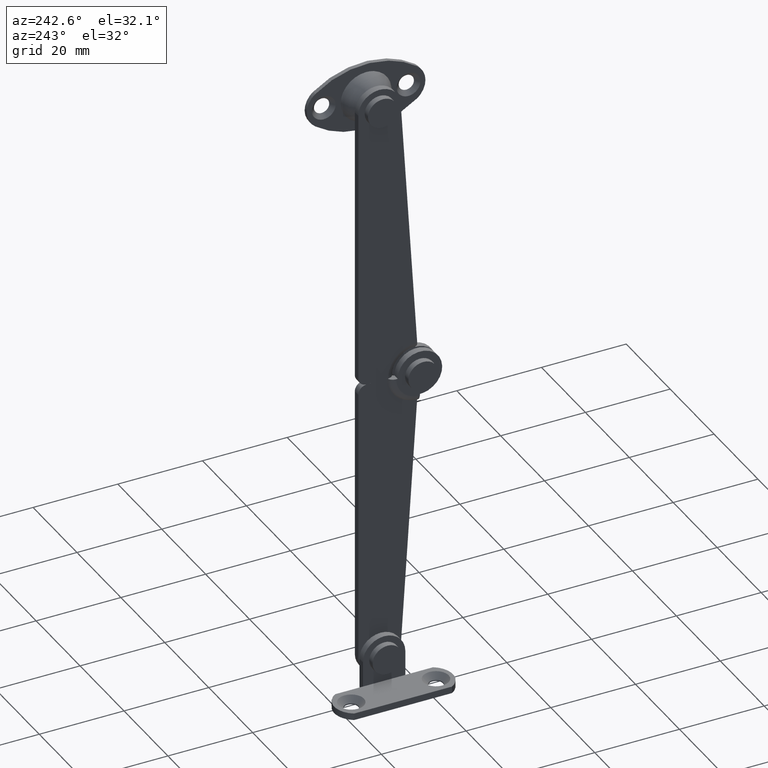
[diagram: clean part render]
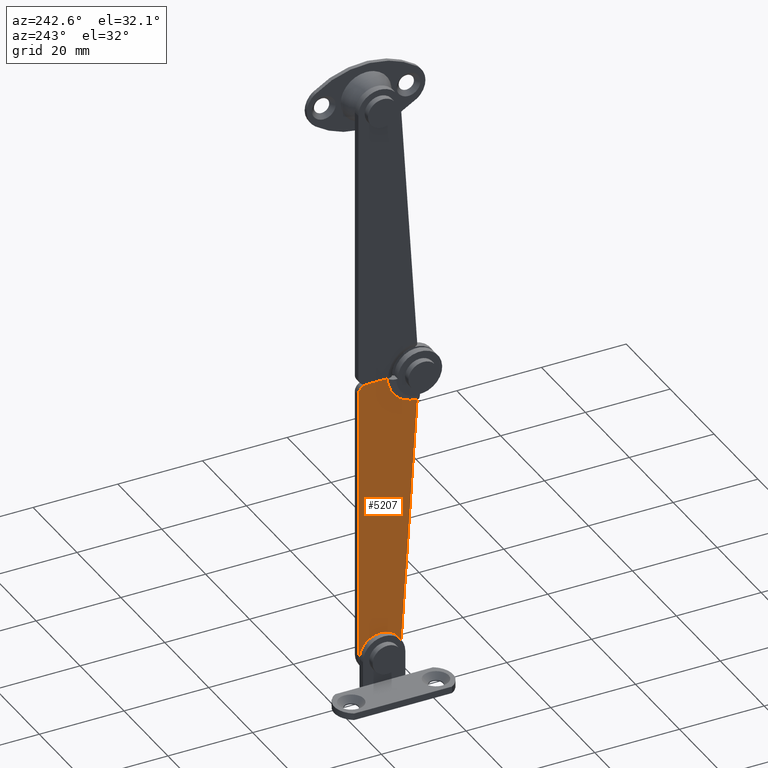
[diagram: same view with one face highlighted and labeled with its STEP entity id]
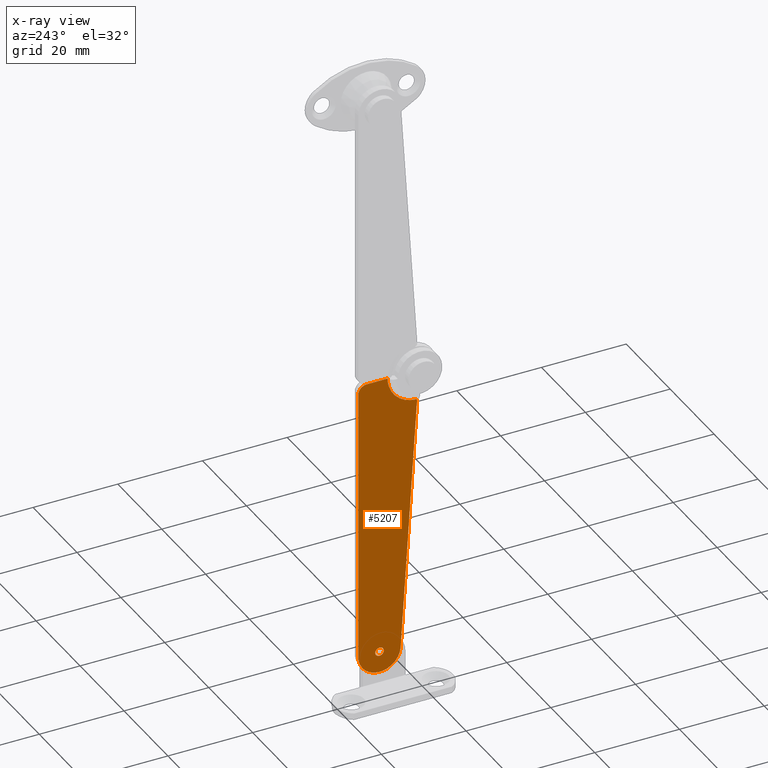
[diagram: x-ray of the same camera — body ghosted, the highlighted face saturated]
A machine part, auxiliary view. The second image highlights one B-rep face of the part: STEP entity #5207.
The next image is the same camera in x-ray: the body ghosted, the highlighted face saturated — about 0% of this face is hidden behind the body in this view.
In plain terms, the highlighted face is a freeform B-spline surface patch.
Its self-contained STEP definition (entity closure, byte-faithful):
#4295=CARTESIAN_POINT('',(2.050003000000165,9.763555931272268,-67.645771767862271));
#4296=VERTEX_POINT('',#4295);
#4302=CARTESIAN_POINT('',(2.050003000000165,9.0,-68.000030000000010));
#4303=VERTEX_POINT('',#4302);
#4304=CARTESIAN_POINT('',(2.050003000000165,9.763555931272268,-67.645771767862271));
#4305=CARTESIAN_POINT('',(2.050003000000163,9.647013302654708,-67.784450490090705));
#4306=CARTESIAN_POINT('',(2.050003000000169,9.398214221589969,-67.952444346047798));
#4307=CARTESIAN_POINT('',(2.050003000000165,9.108601322898030,-68.000078581262557));
#4308=CARTESIAN_POINT('',(2.050003000000165,9.0,-68.000030000000010));
#4309=B_SPLINE_CURVE_WITH_KNOTS('',3,(#4304,#4305,#4306,#4307,#4308),.UNSPECIFIED.,.F.,.U.,(4,1,4),(0.000000116543672,0.543006699963773,0.868828711579627),.UNSPECIFIED.);
#4310=EDGE_CURVE('',#4296,#4303,#4309,.T.);
#4312=CARTESIAN_POINT('',(2.050003000000164,8.000000000000018,-67.000029815553631));
#4313=VERTEX_POINT('',#4312);
#4314=CARTESIAN_POINT('',(2.050003000000165,9.0,-68.000030000000010));
#4315=CARTESIAN_POINT('',(2.050003000000164,8.836303025110839,-68.000338517646682));
#4316=CARTESIAN_POINT('',(2.050003000000166,8.591213166682403,-67.938436172919310));
#4317=CARTESIAN_POINT('',(2.050003000000164,8.281155697364577,-67.720011728837704));
#4318=CARTESIAN_POINT('',(2.050003000000165,8.062555602546849,-67.425315761549768));
#4319=CARTESIAN_POINT('',(2.050003000000165,7.999794273328489,-67.147325667118650));
#4320=CARTESIAN_POINT('',(2.050003000000164,8.000000000000018,-67.000029815553631));
#4321=B_SPLINE_CURVE_WITH_KNOTS('',3,(#4314,#4315,#4316,#4317,#4318,#4319,#4320),.UNSPECIFIED.,.F.,.U.,(4,1,1,1,4),(0.000000231877622,0.490926261532265,0.736389906305798,1.129122870276180,1.570953987262264),.UNSPECIFIED.);
#4322=EDGE_CURVE('',#4303,#4313,#4321,.T.);
#4324=CARTESIAN_POINT('',(2.050003000000165,9.0,-66.000029999999995));
#4325=VERTEX_POINT('',#4324);
#4326=CARTESIAN_POINT('',(2.050003000000164,8.000000000000018,-67.000029815553631));
#4327=CARTESIAN_POINT('',(2.050003000000162,7.999689045490404,-66.836330124135031));
#4328=CARTESIAN_POINT('',(2.050003000000165,8.061596748346359,-66.591246035317738));
#4329=CARTESIAN_POINT('',(2.050003000000167,8.280016771269835,-66.281184032753131));
#4330=CARTESIAN_POINT('',(2.050003000000156,8.574715598618294,-66.062586187581346));
#4331=CARTESIAN_POINT('',(2.050003000000170,8.852701307092211,-65.999824425481847));
#4332=CARTESIAN_POINT('',(2.050003000000165,9.0,-66.000029999999995));
#4333=B_SPLINE_CURVE_WITH_KNOTS('',3,(#4326,#4327,#4328,#4329,#4330,#4331,#4332),.UNSPECIFIED.,.F.,.U.,(4,1,1,1,4),(0.000000232849991,0.490926197147178,0.736389808752548,1.129122720947158,1.570953779327946),.UNSPECIFIED.);
#4334=EDGE_CURVE('',#4313,#4325,#4333,.T.);
#4336=CARTESIAN_POINT('',(2.050003000000165,9.688354446300600,-66.274655569680476));
#4337=VERTEX_POINT('',#4336);
#4338=CARTESIAN_POINT('',(2.050003000000165,9.0,-66.000029999999995));
#4339=CARTESIAN_POINT('',(2.050003000000169,9.142396407031626,-65.999820065375829));
#4340=CARTESIAN_POINT('',(2.050003000000159,9.395250321612355,-66.055077357281576));
#4341=CARTESIAN_POINT('',(2.050003000000167,9.608088162908530,-66.198383099607227));
#4342=CARTESIAN_POINT('',(2.050003000000165,9.688354446300600,-66.274655569680476));
#4343=B_SPLINE_CURVE_WITH_KNOTS('',3,(#4338,#4339,#4340,#4341,#4342),.UNSPECIFIED.,.F.,.U.,(4,1,4),(0.000000071944213,0.427099909562981,0.759289231936322),.UNSPECIFIED.);
#4344=EDGE_CURVE('',#4325,#4337,#4343,.T.);
#4421=CARTESIAN_POINT('',(2.050003000000165,9.999999999999982,-67.000030184446388));
#4422=VERTEX_POINT('',#4421);
#4423=CARTESIAN_POINT('',(2.050003000000165,9.688354446300600,-66.274655569680476));
#4424=CARTESIAN_POINT('',(2.050003000000162,9.798968148729028,-66.379247503054941));
#4425=CARTESIAN_POINT('',(2.050003000000171,9.951379767489614,-66.611195322807646));
#4426=CARTESIAN_POINT('',(2.050003000000160,10.000097984282570,-66.881668832030897));
#4427=CARTESIAN_POINT('',(2.050003000000165,9.999999999999982,-67.000030184446388));
#4428=B_SPLINE_CURVE_WITH_KNOTS('',3,(#4423,#4424,#4425,#4426,#4427),.UNSPECIFIED.,.F.,.U.,(4,1,4),(0.000000100791722,0.456561342600742,0.811665311728753),.UNSPECIFIED.);
#4429=EDGE_CURVE('',#4337,#4422,#4428,.T.);
#4431=CARTESIAN_POINT('',(2.050003000000165,9.999999999999982,-67.000030184446388));
#4432=CARTESIAN_POINT('',(2.050003000000164,10.000046081627470,-67.102409909719654));
#4433=CARTESIAN_POINT('',(2.050003000000166,9.963744628047843,-67.336383000951940));
#4434=CARTESIAN_POINT('',(2.050003000000164,9.848685908714586,-67.545351362340782));
#4435=CARTESIAN_POINT('',(2.050003000000165,9.763555931272268,-67.645771767862271));
#4436=B_SPLINE_CURVE_WITH_KNOTS('',3,(#4431,#4432,#4433,#4434,#4435),.UNSPECIFIED.,.F.,.U.,(4,1,4),(0.000000097201297,0.307156825223662,0.702050402031421),.UNSPECIFIED.);
#4437=EDGE_CURVE('',#4422,#4296,#4436,.T.);
#4642=CARTESIAN_POINT('',(2.050003000000050,0.119508596305833,-7.100002070009940));
#4643=VERTEX_POINT('',#4642);
#4671=CARTESIAN_POINT('',(2.050003000000050,7.101007794583549,3.469447E-015));
#4672=VERTEX_POINT('',#4671);
#4683=CARTESIAN_POINT('',(2.050003000000050,0.119508596305833,-7.100002070009940));
#4684=CARTESIAN_POINT('',(2.050003000000053,0.895357910584359,-7.087430785931559));
#4685=CARTESIAN_POINT('',(2.050003000000051,2.184341088882457,-6.851040286036354));
#4686=CARTESIAN_POINT('',(2.050003000000045,3.821210383876912,-6.052458253633414));
#4687=CARTESIAN_POINT('',(2.050003000000058,4.951929413405933,-5.152113358734435));
#4688=CARTESIAN_POINT('',(2.050003000000050,5.885467988252051,-4.053045343170149));
#4689=CARTESIAN_POINT('',(2.050003000000035,6.506274564326596,-2.942918074523385));
#4690=CARTESIAN_POINT('',(2.050003000000070,6.979345933676901,-1.551668383030281));
#4691=CARTESIAN_POINT('',(2.050003000000037,7.101195563850071,-0.603476504372469));
#4692=CARTESIAN_POINT('',(2.050003000000050,7.101007794583549,3.469447E-015));
#4693=B_SPLINE_CURVE_WITH_KNOTS('',3,(#4683,#4684,#4685,#4686,#4687,#4688,#4689,#4690,#4691,#4692),.UNSPECIFIED.,.F.,.U.,(4,1,1,1,1,1,1,4),(0.000000170401126,2.327646666878168,3.879441861792485,5.431237621832570,6.638079847214706,8.189882308803519,9.224417163092307,11.034790484107329),.UNSPECIFIED.);
#4694=EDGE_CURVE('',#4643,#4672,#4693,.T.);
#4931=CARTESIAN_POINT('',(2.050003000000063,12.000000034515930,8.062879E-011));
#4932=VERTEX_POINT('',#4931);
#4951=CARTESIAN_POINT('',(2.050003000000050,14.0,-2.0));
#4952=VERTEX_POINT('',#4951);
#4958=CARTESIAN_POINT('',(2.050003000000050,14.0,-2.0));
#4959=CARTESIAN_POINT('',(2.050003000000049,14.000037349687339,-1.836374745688778));
#4960=CARTESIAN_POINT('',(2.050003000000054,13.959618036084080,-1.509147852546601));
#4961=CARTESIAN_POINT('',(2.050003000000056,13.752102278721130,-0.970694171993890));
#4962=CARTESIAN_POINT('',(2.050003000000052,13.398644208975821,-0.528950445968116));
#4963=CARTESIAN_POINT('',(2.050003000000061,12.977624786236269,-0.240413118378220));
#4964=CARTESIAN_POINT('',(2.050003000000060,12.539896122973690,-0.052725823747828));
#4965=CARTESIAN_POINT('',(2.050003000000063,12.212729977967310,0.000113695992190));
#4966=CARTESIAN_POINT('',(2.050003000000063,12.000000034515930,8.062879E-011));
#4967=B_SPLINE_CURVE_WITH_KNOTS('',3,(#4958,#4959,#4960,#4961,#4962,#4963,#4964,#4965,#4966),.UNSPECIFIED.,.F.,.U.,(4,1,1,1,1,1,4),(0.000000369103468,0.490880576947632,0.981788885780775,1.718090157849422,2.159894916107732,2.503531264931457,3.141683473236950),.UNSPECIFIED.);
#4968=EDGE_CURVE('',#4952,#4932,#4967,.T.);
#4992=CARTESIAN_POINT('',(2.050003000000063,12.000000034515930,8.062879E-011));
#4993=CARTESIAN_POINT('',(2.050003000000050,7.101007794583549,3.469447E-015));
#4994=QUASI_UNIFORM_CURVE('',1,(#4992,#4993),.UNSPECIFIED.,.F.,.U.);
#4995=EDGE_CURVE('',#4932,#4672,#4994,.T.);
#5006=CARTESIAN_POINT('',(2.050003000000050,4.010375993343875,-67.322386896976582));
#5007=VERTEX_POINT('',#5006);
#5008=CARTESIAN_POINT('',(2.050003000000050,0.119508596305833,-7.100002070009940));
#5009=CARTESIAN_POINT('',(2.050003000000050,4.010375993343875,-67.322386896976582));
#5010=QUASI_UNIFORM_CURVE('',1,(#5008,#5009),.UNSPECIFIED.,.F.,.U.);
#5011=EDGE_CURVE('',#4643,#5007,#5010,.T.);
#5057=CARTESIAN_POINT('',(2.050003000000050,14.0,-67.000029999999995));
#5058=VERTEX_POINT('',#5057);
#5091=CARTESIAN_POINT('',(2.050003000000050,9.161251087701720,-71.997428858982460));
#5092=VERTEX_POINT('',#5091);
#5093=CARTESIAN_POINT('',(2.050003000000050,4.010375993343875,-67.322386896976582));
#5094=CARTESIAN_POINT('',(2.050003000000047,4.044936272691037,-67.862216252360241));
#5095=CARTESIAN_POINT('',(2.050003000000056,4.282740112172126,-68.890528248180132));
#5096=CARTESIAN_POINT('',(2.050003000000047,5.073349561645789,-70.211895901947528));
#5097=CARTESIAN_POINT('',(2.050003000000049,6.002794968484407,-71.055191435650102));
#5098=CARTESIAN_POINT('',(2.050003000000054,6.999856767822049,-71.618958977244844));
#5099=CARTESIAN_POINT('',(2.050003000000037,7.997062124825979,-71.945338381848430));
#5100=CARTESIAN_POINT('',(2.050003000000076,8.780824084348003,-72.009767469128022));
#5101=CARTESIAN_POINT('',(2.050003000000050,9.161251087701720,-71.997428858982460));
#5102=B_SPLINE_CURVE_WITH_KNOTS('',3,(#5093,#5094,#5095,#5096,#5097,#5098,#5099,#5100,#5101),.UNSPECIFIED.,.F.,.U.,(4,1,1,1,1,1,4),(0.000000180029058,1.622681626867069,3.125217462539113,4.567530592168588,5.348851822340967,6.550869414663076,7.692747751095085),.UNSPECIFIED.);
#5103=EDGE_CURVE('',#5007,#5092,#5102,.T.);
#5105=CARTESIAN_POINT('',(2.050003000000050,9.161251087701720,-71.997428858982460));
#5106=CARTESIAN_POINT('',(2.050003000000049,9.501641939516860,-71.986495076084637));
#5107=CARTESIAN_POINT('',(2.050003000000055,10.140217388631591,-71.900040883680518));
#5108=CARTESIAN_POINT('',(2.050003000000044,11.169003463338861,-71.551509430062836));
#5109=CARTESIAN_POINT('',(2.050003000000054,12.117093089908330,-70.971449810816665));
#5110=CARTESIAN_POINT('',(2.050003000000046,12.869054625874210,-70.213062700293136));
#5111=CARTESIAN_POINT('',(2.050003000000056,13.420954978911150,-69.397659390315724));
#5112=CARTESIAN_POINT('',(2.050003000000026,13.869434362564739,-68.362163708161333));
#5113=CARTESIAN_POINT('',(2.050003000000073,14.000243424478329,-67.500880101860275));
#5114=CARTESIAN_POINT('',(2.050003000000050,14.0,-67.000029999999995));
#5115=B_SPLINE_CURVE_WITH_KNOTS('',3,(#5105,#5106,#5107,#5108,#5109,#5110,#5111,#5112,#5113,#5114),.UNSPECIFIED.,.F.,.U.,(4,1,1,1,1,1,1,4),(0.000000180043473,1.021691919946876,1.923185996879150,3.245416871457820,4.327128445896395,5.108447750284610,6.190266254090437,7.692743229456307),.UNSPECIFIED.);
#5116=EDGE_CURVE('',#5092,#5058,#5115,.T.);
#5126=CARTESIAN_POINT('',(2.050003000000050,14.0,-67.000029999999995));
#5127=CARTESIAN_POINT('',(2.050003000000050,14.0,-2.0));
#5128=QUASI_UNIFORM_CURVE('',1,(#5126,#5127),.UNSPECIFIED.,.F.,.U.);
#5129=EDGE_CURVE('',#5058,#4952,#5128,.T.);
#5185=CARTESIAN_POINT('',(2.050003000000090,14.693330518711440,3.596356830874466));
#5186=CARTESIAN_POINT('',(2.050003000000090,-0.573822294709395,3.596356830874466));
#5187=CARTESIAN_POINT('',(2.050003000000090,14.693330518711440,-75.595497307156705));
#5188=CARTESIAN_POINT('',(2.050003000000090,-0.573822294709395,-75.595497307156705));
#5189=B_SPLINE_SURFACE_WITH_KNOTS('',1,1,((#5185,#5187),(#5186,#5188)),.UNSPECIFIED.,.F.,.F.,.U.,(2,2),(2,2),(0.0,15.267152813420831),(0.0,79.191854138031175),.UNSPECIFIED.);
#5190=ORIENTED_EDGE('',*,*,#4995,.F.);
#5191=ORIENTED_EDGE('',*,*,#4968,.F.);
#5192=ORIENTED_EDGE('',*,*,#5129,.F.);
#5193=ORIENTED_EDGE('',*,*,#5116,.F.);
#5194=ORIENTED_EDGE('',*,*,#5103,.F.);
#5195=ORIENTED_EDGE('',*,*,#5011,.F.);
#5196=ORIENTED_EDGE('',*,*,#4694,.T.);
#5197=EDGE_LOOP('',(#5190,#5191,#5192,#5193,#5194,#5195,#5196));
#5198=FACE_OUTER_BOUND('',#5197,.T.);
#5199=ORIENTED_EDGE('',*,*,#4322,.F.);
#5200=ORIENTED_EDGE('',*,*,#4310,.F.);
#5201=ORIENTED_EDGE('',*,*,#4437,.F.);
#5202=ORIENTED_EDGE('',*,*,#4429,.F.);
#5203=ORIENTED_EDGE('',*,*,#4344,.F.);
#5204=ORIENTED_EDGE('',*,*,#4334,.F.);
#5205=EDGE_LOOP('',(#5199,#5200,#5201,#5202,#5203,#5204));
#5206=FACE_BOUND('',#5205,.T.);
#5207=ADVANCED_FACE('',(#5198,#5206),#5189,.F.);